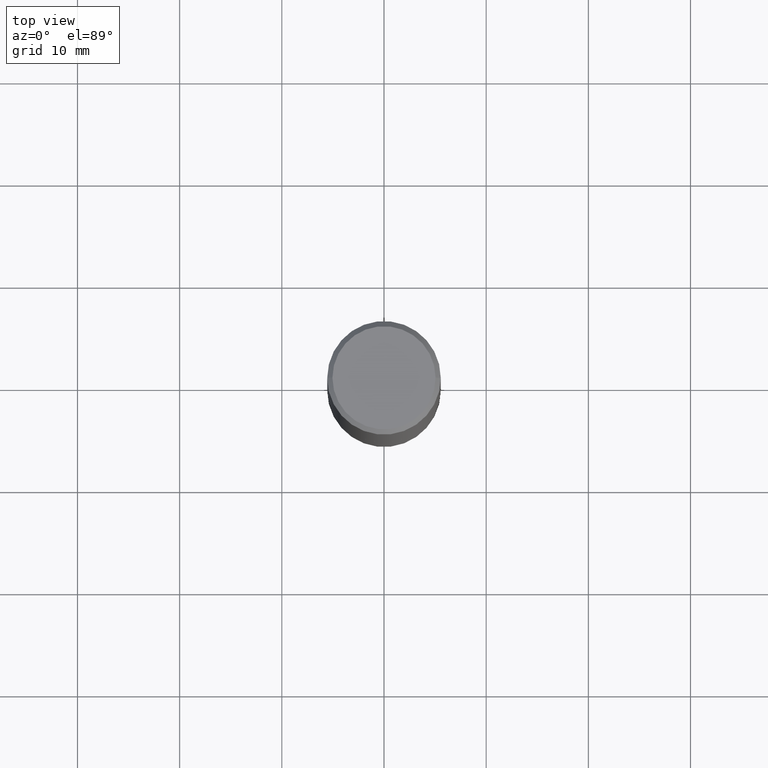
[diagram: clean part render]
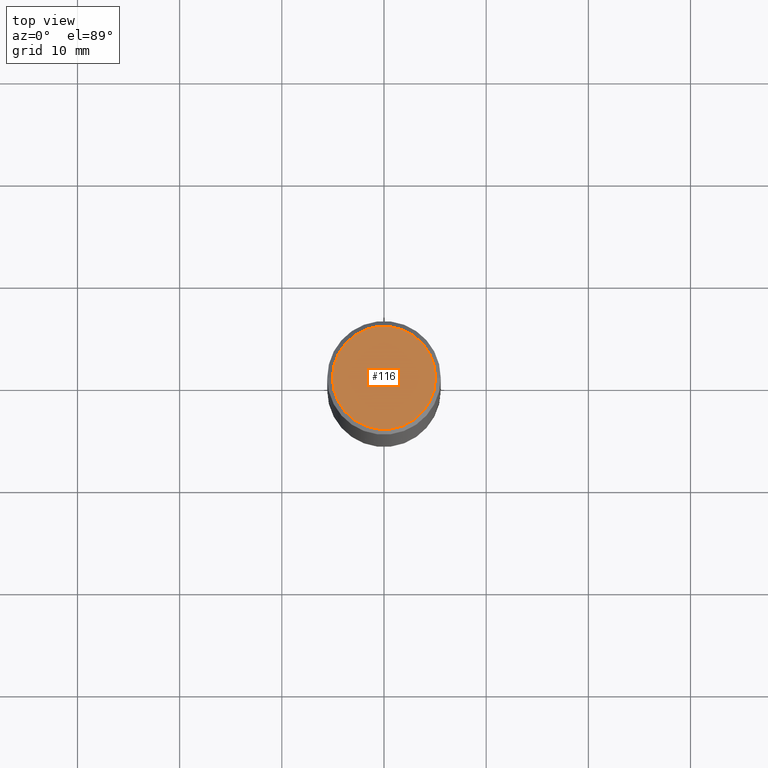
[diagram: same view with one face highlighted and labeled with its STEP entity id]
A machine part, top view. The second image highlights one B-rep face of the part: STEP entity #116.
In plain terms, the highlighted planar face has unit normal (0, -0, -1).
Its self-contained STEP definition (entity closure, byte-faithful):
#9 = DIRECTION ( 'NONE',  ( -1.000000000000000000, 6.982962677686265922E-15, -4.876176775795935793E-29 ) ) ;
#13 = FACE_OUTER_BOUND ( 'NONE', #80, .T. ) ;
#14 = DIRECTION ( 'NONE',  ( 1.000000000000000000, -6.982962677686266711E-15, 4.876176775795935232E-29 ) ) ;
#18 = CARTESIAN_POINT ( 'NONE',  ( 0.1987499999999997602, -1.467043770423236875E-15, 9.982525199991772484E-30 ) ) ;
#38 = AXIS2_PLACEMENT_3D ( 'NONE', #61, #97, #236 ) ;
#50 = EDGE_CURVE ( 'NONE', #281, #260, #159, .T. ) ;
#51 = ORIENTED_EDGE ( 'NONE', *, *, #134, .T. ) ;
#55 = AXIS2_PLACEMENT_3D ( 'NONE', #71, #266, #9 ) ;
#61 = CARTESIAN_POINT ( 'NONE',  ( 0.000000000000000000, 0.000000000000000000, 0.000000000000000000 ) ) ;
#69 = DIRECTION ( 'NONE',  ( -2.445468806185136597E-29, 3.491481338843145583E-15, 1.000000000000000000 ) ) ;
#71 = CARTESIAN_POINT ( 'NONE',  ( 1.387863832190143655E-15, 0.1987499999999997602, -6.939319160950743912E-16 ) ) ;
#80 = EDGE_LOOP ( 'NONE', ( #285, #51 ) ) ;
#97 = DIRECTION ( 'NONE',  ( -2.445468806185136597E-29, 3.491481338843145583E-15, 1.000000000000000000 ) ) ;
#116 = ADVANCED_FACE ( 'NONE', ( #13 ), #149, .F. ) ;
#134 = EDGE_CURVE ( 'NONE', #260, #281, #269, .T. ) ;
#136 = CARTESIAN_POINT ( 'NONE',  ( -0.1987499999999997602, 1.422778645578575107E-15, -9.827974342635073886E-30 ) ) ;
#149 = PLANE ( 'NONE',  #55 ) ;
#159 = CIRCLE ( 'NONE', #38, 0.1987499999999997602 ) ;
#236 = DIRECTION ( 'NONE',  ( 1.000000000000000000, -6.982962677686266711E-15, 4.876176775795935232E-29 ) ) ;
#240 = CARTESIAN_POINT ( 'NONE',  ( 0.000000000000000000, 0.000000000000000000, 0.000000000000000000 ) ) ;
#260 = VERTEX_POINT ( 'NONE', #18 ) ;
#266 = DIRECTION ( 'NONE',  ( 2.438088387897960049E-29, -3.491481338843145188E-15, -1.000000000000000000 ) ) ;
#269 = CIRCLE ( 'NONE', #315, 0.1987499999999997602 ) ;
#281 = VERTEX_POINT ( 'NONE', #136 ) ;
#285 = ORIENTED_EDGE ( 'NONE', *, *, #50, .T. ) ;
#315 = AXIS2_PLACEMENT_3D ( 'NONE', #240, #69, #14 ) ;